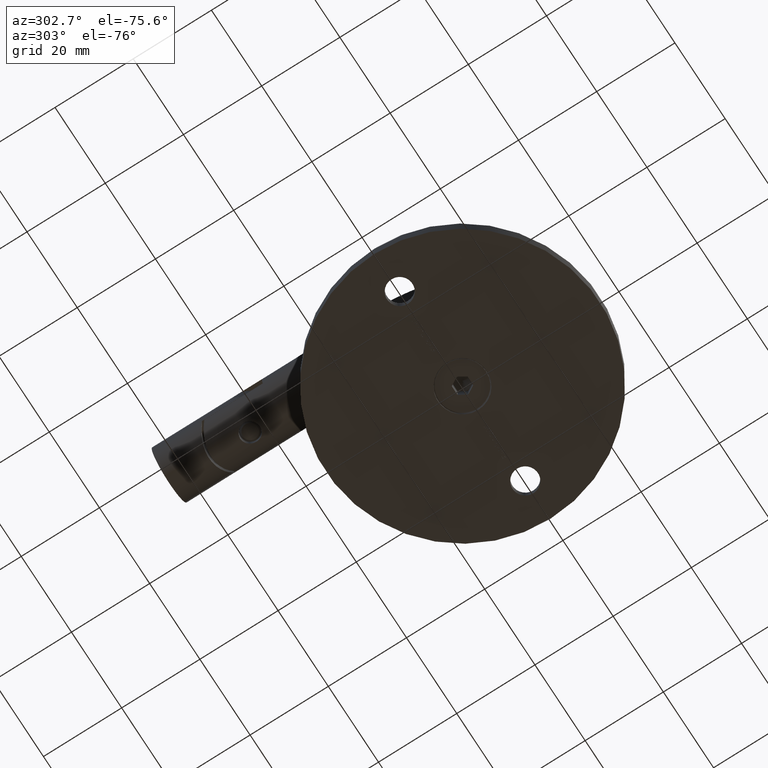
[diagram: clean part render]
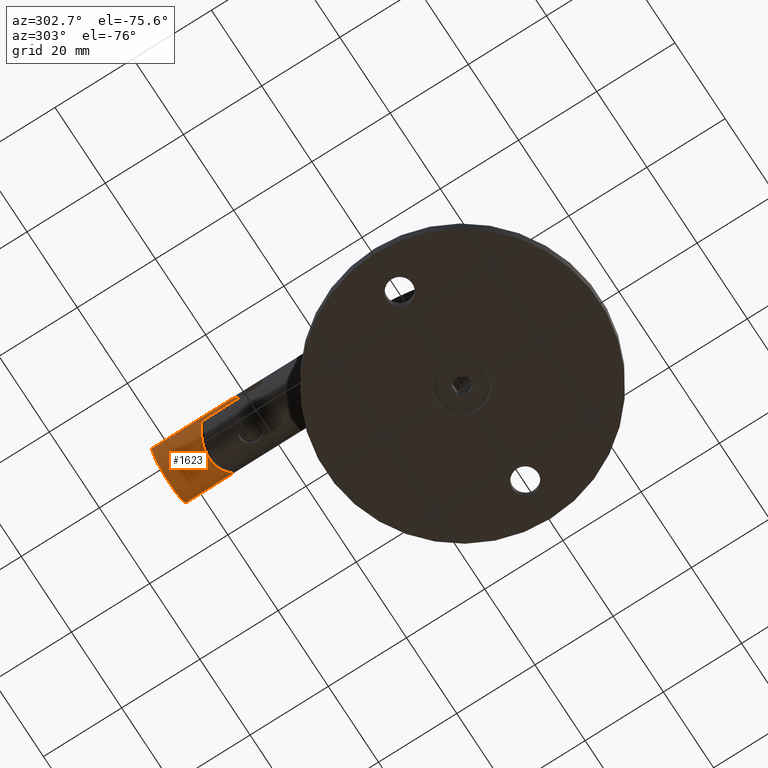
[diagram: same view with one face highlighted and labeled with its STEP entity id]
A machine part, auxiliary view. The second image highlights one B-rep face of the part: STEP entity #1623.
In plain terms, the highlighted cylindrical surface (edge-blend (fillet) strip) has radius 7 mm, axis along (-0, -1, 0).
Its self-contained STEP definition (entity closure, byte-faithful):
#140 = CARTESIAN_POINT ( 'NONE',  ( -5.098225568087499049, 1.507680997245447907, -4.810331244273750251 ) ) ;
#216 = CARTESIAN_POINT ( 'NONE',  ( -6.491294757377507274, 2.337495894761202564, -2.646943327226383147 ) ) ;
#270 = DIRECTION ( 'NONE',  ( 0.000000000000000000, 0.000000000000000000, -1.000000000000000000 ) ) ;
#790 = VECTOR ( 'NONE', #9873, 1000.000000000000000 ) ;
#1197 = CYLINDRICAL_SURFACE ( 'NONE', #7479, 7.000000000000000000 ) ;
#1623 = ADVANCED_FACE ( 'NONE', ( #12186 ), #1197, .T. ) ;
#1666 = CARTESIAN_POINT ( 'NONE',  ( -6.493698171597640290, 2.339301547469185394, 2.620648414655422531 ) ) ;
#1735 = CARTESIAN_POINT ( 'NONE',  ( -6.836534901959993249, 2.561624352504827229, -1.552742132354660631 ) ) ;
#1817 = CARTESIAN_POINT ( 'NONE',  ( -6.965875584859534619, 2.647168982201080212, -0.7910720141455144239 ) ) ;
#1882 = LINE ( 'NONE', #14953, #790 ) ;
#1962 = CARTESIAN_POINT ( 'NONE',  ( -5.123306368496064245, 1.516911100700420789, 4.827093295004153184 ) ) ;
#2002 = VERTEX_POINT ( 'NONE', #21568 ) ;
#2017 = CARTESIAN_POINT ( 'NONE',  ( 8.572527594031473190E-16, 12.86999999999999922, 7.000000000000000000 ) ) ;
#2876 = LINE ( 'NONE', #5709, #18913 ) ;
#3381 = CARTESIAN_POINT ( 'NONE',  ( -4.574524191117705030, 1.232375739194370823, -5.310830353872759702 ) ) ;
#3482 = CARTESIAN_POINT ( 'NONE',  ( 1.084202172485504434E-15, -7.830000000000000071, 7.000000000000000000 ) ) ;
#3483 = LINE ( 'NONE', #13096, #7475 ) ;
#3582 = DIRECTION ( 'NONE',  ( -0.000000000000000000, -1.000000000000000000, -0.000000000000000000 ) ) ;
#3602 = CARTESIAN_POINT ( 'NONE',  ( -2.713400598068925973, 0.4475252976790311532, -6.463165776157995701 ) ) ;
#3820 = CARTESIAN_POINT ( 'NONE',  ( -1.349818663702006427, -9.179818663702004500, -6.902050554587897402 ) ) ;
#3974 = ORIENTED_EDGE ( 'NONE', *, *, #16073, .F. ) ;
#4347 = EDGE_CURVE ( 'NONE', #19600, #15179, #20922, .T. ) ;
#4424 = CARTESIAN_POINT ( 'NONE',  ( -1.084202172485504434E-15, -7.830000000000000071, -7.000000000000000000 ) ) ;
#4425 = DIRECTION ( 'NONE',  ( 0.000000000000000000, 0.000000000000000000, 1.000000000000000000 ) ) ;
#4906 = B_SPLINE_CURVE_WITH_KNOTS ( 'NONE', 3,
 ( #18987, #20482, #3602, #8667, #6945, #22205, #3381, #140, #17357, #15633, #15344, #10504, #216, #10349, #1735, #1817, #5242, #20646, #17142, #7095, #5314, #12000, #1666, #10432, #12222, #8440, #5389, #1962, #11928, #15569, #20408, #13635, #18918, #12153 ),
 .UNSPECIFIED., .F., .F.,
 ( 4, 2, 2, 2, 2, 2, 2, 2, 2, 2, 2, 2, 2, 2, 2, 2, 4 ),
 ( 4.470280076681872512E-19, 0.001159692097011935305, 0.002319384194023870176, 0.003479076291035805048, 0.004638768388047740353, 0.005798460485059674790, 0.006958152582071610096, 0.008117844679083543666, 0.009277536776095478971, 0.01043722887310741254, 0.01159692097011934785, 0.01217676701862531463, 0.01275661306713128489, 0.01391630516414321846, 0.01623568935816708039, 0.01739538145517901049, 0.01855507355219094059 ),
 .UNSPECIFIED. ) ;
#5242 = CARTESIAN_POINT ( 'NONE',  ( -6.998897834509339333, 2.669265224558423633, -0.4069292137963665956 ) ) ;
#5314 = CARTESIAN_POINT ( 'NONE',  ( -6.748486738297989618, 2.503594992437064182, 1.898480640440702860 ) ) ;
#5389 = CARTESIAN_POINT ( 'NONE',  ( -5.796133557264198544, 1.907134278542905070, 3.942348315711394768 ) ) ;
#5709 = CARTESIAN_POINT ( 'NONE',  ( -2.000000000000001332, -14.83000000000000007, -6.708203932499366751 ) ) ;
#5740 = ORIENTED_EDGE ( 'NONE', *, *, #11558, .F. ) ;
#6945 = CARTESIAN_POINT ( 'NONE',  ( -3.690207271789671672, 0.8184610654100907823, -5.959556859248441363 ) ) ;
#7095 = CARTESIAN_POINT ( 'NONE',  ( -6.842415717056733904, 2.565498978793210760, 1.526822293499679128 ) ) ;
#7475 = VECTOR ( 'NONE', #16585, 1000.000000000000000 ) ;
#7479 = AXIS2_PLACEMENT_3D ( 'NONE', #15615, #3582, #270 ) ;
#8197 = CARTESIAN_POINT ( 'NONE',  ( -1.349818663702002874, -9.179818663702002723, 6.902050554587896514 ) ) ;
#8276 = CARTESIAN_POINT ( 'NONE',  ( -0.6784631773098510621, -8.508463177309851133, 6.999999999999997335 ) ) ;
#8440 = CARTESIAN_POINT ( 'NONE',  ( -5.996326991454272282, 2.028337867128214178, 3.630895157663143635 ) ) ;
#8667 = CARTESIAN_POINT ( 'NONE',  ( -3.375247361192847073, 0.6874630611089125320, -6.143513645013049640 ) ) ;
#8709 = EDGE_CURVE ( 'NONE', #19600, #20781, #1882, .T. ) ;
#9147 = EDGE_LOOP ( 'NONE', ( #18238, #13368, #17624, #5740, #15682, #10383, #18890, #3974 ) ) ;
#9222 = EDGE_CURVE ( 'NONE', #10037, #2002, #3483, .T. ) ;
#9520 = DIRECTION ( 'NONE',  ( 0.000000000000000000, 1.000000000000000000, 0.000000000000000000 ) ) ;
#9661 = AXIS2_PLACEMENT_3D ( 'NONE', #12841, #9520, #4425 ) ;
#9731 = VECTOR ( 'NONE', #11385, 1000.000000000000000 ) ;
#9873 = DIRECTION ( 'NONE',  ( -0.000000000000000000, -1.000000000000000000, -0.000000000000000000 ) ) ;
#9877 = CARTESIAN_POINT ( 'NONE',  ( -1.999999999999999556, -9.830000000000001847, 6.708203932499366751 ) ) ;
#10037 = VERTEX_POINT ( 'NONE', #10365 ) ;
#10349 = CARTESIAN_POINT ( 'NONE',  ( -6.738828323587275015, 2.497287752242178360, -1.931685644695550819 ) ) ;
#10365 = CARTESIAN_POINT ( 'NONE',  ( -1.999999999999999556, -9.830000000000001847, 6.708203932499366751 ) ) ;
#10383 = ORIENTED_EDGE ( 'NONE', *, *, #21020, .T. ) ;
#10432 = CARTESIAN_POINT ( 'NONE',  ( -6.342393173799406370, 2.243357394166350716, 2.968158163910616043 ) ) ;
#10504 = CARTESIAN_POINT ( 'NONE',  ( -6.340955651380306257, 2.241678437187309303, -2.988258123872793437 ) ) ;
#11008 =( BOUNDED_CURVE ( )  B_SPLINE_CURVE ( 3, ( #20863, #3820, #17583, #18993 ),
 .UNSPECIFIED., .F., .F. ) 
 B_SPLINE_CURVE_WITH_KNOTS ( ( 4, 4 ),
 ( 1.281044625358848776, 1.570796326794896558 ),
 .UNSPECIFIED. ) 
 CURVE ( )  GEOMETRIC_REPRESENTATION_ITEM ( )  RATIONAL_B_SPLINE_CURVE ( ( 1.000000000000000000, 0.9930158912520659076, 0.9930158912520659076, 1.000000000000000000 ) ) 
 REPRESENTATION_ITEM ( '' )  );
#11385 = DIRECTION ( 'NONE',  ( -0.000000000000000000, -1.000000000000000000, -0.000000000000000000 ) ) ;
#11558 = EDGE_CURVE ( 'NONE', #20637, #20781, #11008, .T. ) ;
#11928 = CARTESIAN_POINT ( 'NONE',  ( -4.600603523304215514, 1.232378279580378821, 5.326804861503374511 ) ) ;
#12000 = CARTESIAN_POINT ( 'NONE',  ( -6.563210585580058876, 2.383888155024717737, 2.441483628679072204 ) ) ;
#12153 = CARTESIAN_POINT ( 'NONE',  ( -2.000000000000000888, 0.2477472107017559266, 6.708203932499369415 ) ) ;
#12186 = FACE_OUTER_BOUND ( 'NONE', #9147, .T. ) ;
#12222 = CARTESIAN_POINT ( 'NONE',  ( -6.260428293652170240, 2.191885274161911923, 3.137175774265053896 ) ) ;
#12687 = CARTESIAN_POINT ( 'NONE',  ( -2.000000000000001332, -9.830000000000001847, -6.708203932499366751 ) ) ;
#12841 = CARTESIAN_POINT ( 'NONE',  ( 0.000000000000000000, 12.86999999999999922, 0.000000000000000000 ) ) ;
#13096 = CARTESIAN_POINT ( 'NONE',  ( -1.999999999999999556, -14.83000000000000007, 6.708203932499366751 ) ) ;
#13368 = ORIENTED_EDGE ( 'NONE', *, *, #4347, .F. ) ;
#13635 = CARTESIAN_POINT ( 'NONE',  ( -2.714574385463742079, 0.4478734137668013426, 6.462745367829188403 ) ) ;
#14953 = CARTESIAN_POINT ( 'NONE',  ( 0.000000000000000000, 12.86999999999999922, -7.000000000000000000 ) ) ;
#14987 = VERTEX_POINT ( 'NONE', #17960 ) ;
#15080 = LINE ( 'NONE', #18243, #9731 ) ;
#15179 = VERTEX_POINT ( 'NONE', #2017 ) ;
#15344 = CARTESIAN_POINT ( 'NONE',  ( -5.989893732107819169, 2.024431231241938356, -3.641233069403695843 ) ) ;
#15569 = CARTESIAN_POINT ( 'NONE',  ( -3.695369663660663662, 0.8206383450584894268, 5.956453957825103451 ) ) ;
#15606 = EDGE_CURVE ( 'NONE', #14987, #20637, #2876, .T. ) ;
#15615 = CARTESIAN_POINT ( 'NONE',  ( 0.000000000000000000, 12.86999999999999922, 0.000000000000000000 ) ) ;
#15626 =( BOUNDED_CURVE ( )  B_SPLINE_CURVE ( 3, ( #18531, #8276, #8197, #9877 ),
 .UNSPECIFIED., .F., .T. ) 
 B_SPLINE_CURVE_WITH_KNOTS ( ( 4, 4 ),
 ( 4.712388980384689674, 5.002140681820737456 ),
 .UNSPECIFIED. ) 
 CURVE ( )  GEOMETRIC_REPRESENTATION_ITEM ( )  RATIONAL_B_SPLINE_CURVE ( ( 1.000000000000000000, 0.9930158912520659076, 0.9930158912520659076, 1.000000000000000000 ) ) 
 REPRESENTATION_ITEM ( '' )  );
#15633 = CARTESIAN_POINT ( 'NONE',  ( -5.786992045166831744, 1.901711056291604862, -3.955495712778465567 ) ) ;
#15682 = ORIENTED_EDGE ( 'NONE', *, *, #15606, .F. ) ;
#16073 = EDGE_CURVE ( 'NONE', #21800, #10037, #15626, .T. ) ;
#16585 = DIRECTION ( 'NONE',  ( -0.000000000000000000, 1.000000000000000000, -0.000000000000000000 ) ) ;
#17142 = CARTESIAN_POINT ( 'NONE',  ( -6.969043535917538890, 2.649280222352092817, 0.7630670713892542256 ) ) ;
#17357 = CARTESIAN_POINT ( 'NONE',  ( -5.340699643159998011, 1.643119646176408155, -4.540060636839960750 ) ) ;
#17583 = CARTESIAN_POINT ( 'NONE',  ( -0.6784631773098549479, -8.508463177309852910, -6.999999999999997335 ) ) ;
#17624 = ORIENTED_EDGE ( 'NONE', *, *, #8709, .T. ) ;
#17960 = CARTESIAN_POINT ( 'NONE',  ( -2.000000000000002665, 0.2477472107017559266, -6.708203932499369415 ) ) ;
#18238 = ORIENTED_EDGE ( 'NONE', *, *, #21291, .F. ) ;
#18243 = CARTESIAN_POINT ( 'NONE',  ( 8.572527594031473190E-16, 12.86999999999999922, 7.000000000000000000 ) ) ;
#18531 = CARTESIAN_POINT ( 'NONE',  ( 1.084202172485504434E-15, -7.830000000000000071, 7.000000000000000000 ) ) ;
#18890 = ORIENTED_EDGE ( 'NONE', *, *, #9222, .F. ) ;
#18913 = VECTOR ( 'NONE', #19469, 1000.000000000000000 ) ;
#18918 = CARTESIAN_POINT ( 'NONE',  ( -2.366925258247766006, 0.3385956239231183162, 6.598807956485549298 ) ) ;
#18987 = CARTESIAN_POINT ( 'NONE',  ( -2.000000000000002665, 0.2477472107017559266, -6.708203932499369415 ) ) ;
#18993 = CARTESIAN_POINT ( 'NONE',  ( -1.084202172485504434E-15, -7.830000000000000071, -7.000000000000000000 ) ) ;
#19428 = CARTESIAN_POINT ( 'NONE',  ( 0.000000000000000000, 12.86999999999999922, -7.000000000000000000 ) ) ;
#19469 = DIRECTION ( 'NONE',  ( 0.000000000000000000, -1.000000000000000000, 0.000000000000000000 ) ) ;
#19600 = VERTEX_POINT ( 'NONE', #19428 ) ;
#20408 = CARTESIAN_POINT ( 'NONE',  ( -3.378598239792879099, 0.6887557909628401198, 6.141747773857367143 ) ) ;
#20482 = CARTESIAN_POINT ( 'NONE',  ( -2.366568476869575388, 0.3385072870715456483, -6.598914328140846663 ) ) ;
#20637 = VERTEX_POINT ( 'NONE', #12687 ) ;
#20646 = CARTESIAN_POINT ( 'NONE',  ( -7.001048272548957563, 2.670698846852197494, 0.3680833715066558764 ) ) ;
#20781 = VERTEX_POINT ( 'NONE', #4424 ) ;
#20863 = CARTESIAN_POINT ( 'NONE',  ( -2.000000000000001332, -9.830000000000001847, -6.708203932499366751 ) ) ;
#20922 = CIRCLE ( 'NONE', #9661, 7.000000000000000000 ) ;
#21020 = EDGE_CURVE ( 'NONE', #14987, #2002, #4906, .T. ) ;
#21291 = EDGE_CURVE ( 'NONE', #15179, #21800, #15080, .T. ) ;
#21568 = CARTESIAN_POINT ( 'NONE',  ( -2.000000000000000888, 0.2477472107017559266, 6.708203932499369415 ) ) ;
#21800 = VERTEX_POINT ( 'NONE', #3482 ) ;
#22205 = CARTESIAN_POINT ( 'NONE',  ( -4.291568075589170306, 1.091648145861895403, -5.542237014055640287 ) ) ;